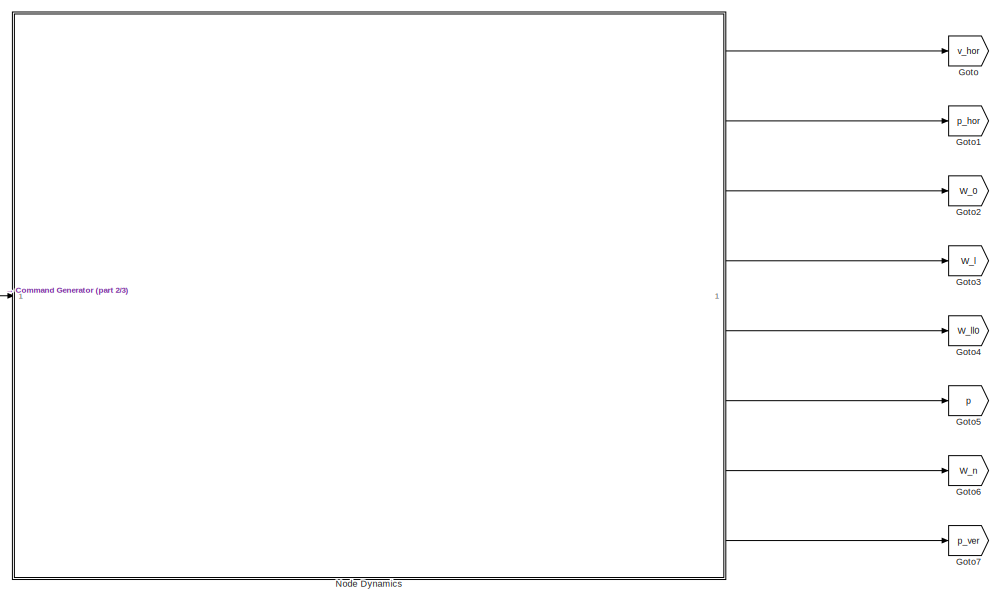
[diagram: root canvas - part 1/3, left side, full height]
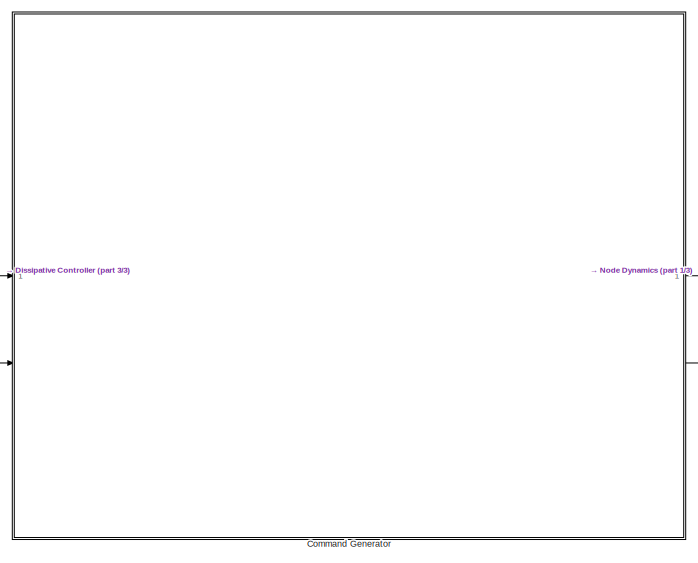
[diagram: root canvas - part 2/3, middle right region]
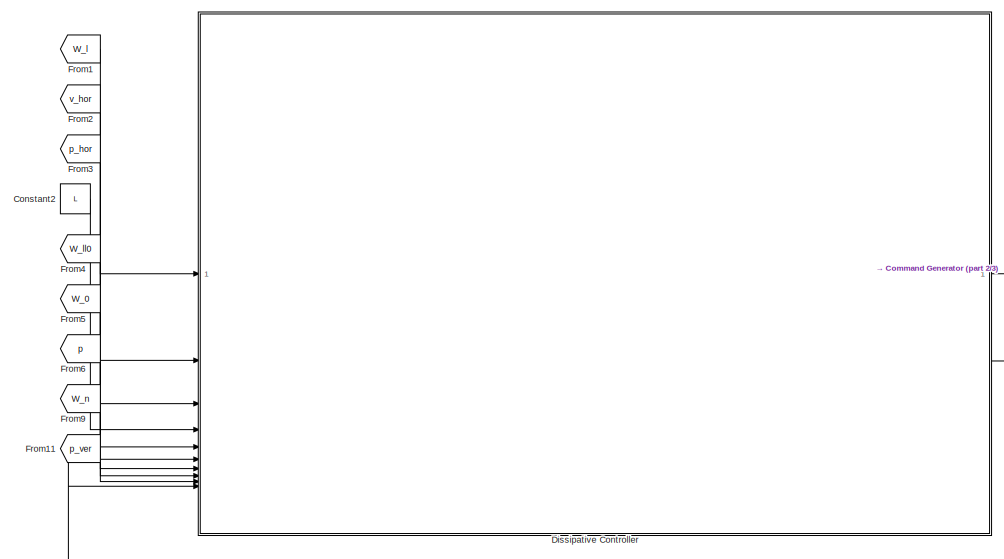
[diagram: root canvas - part 3/3, central region]
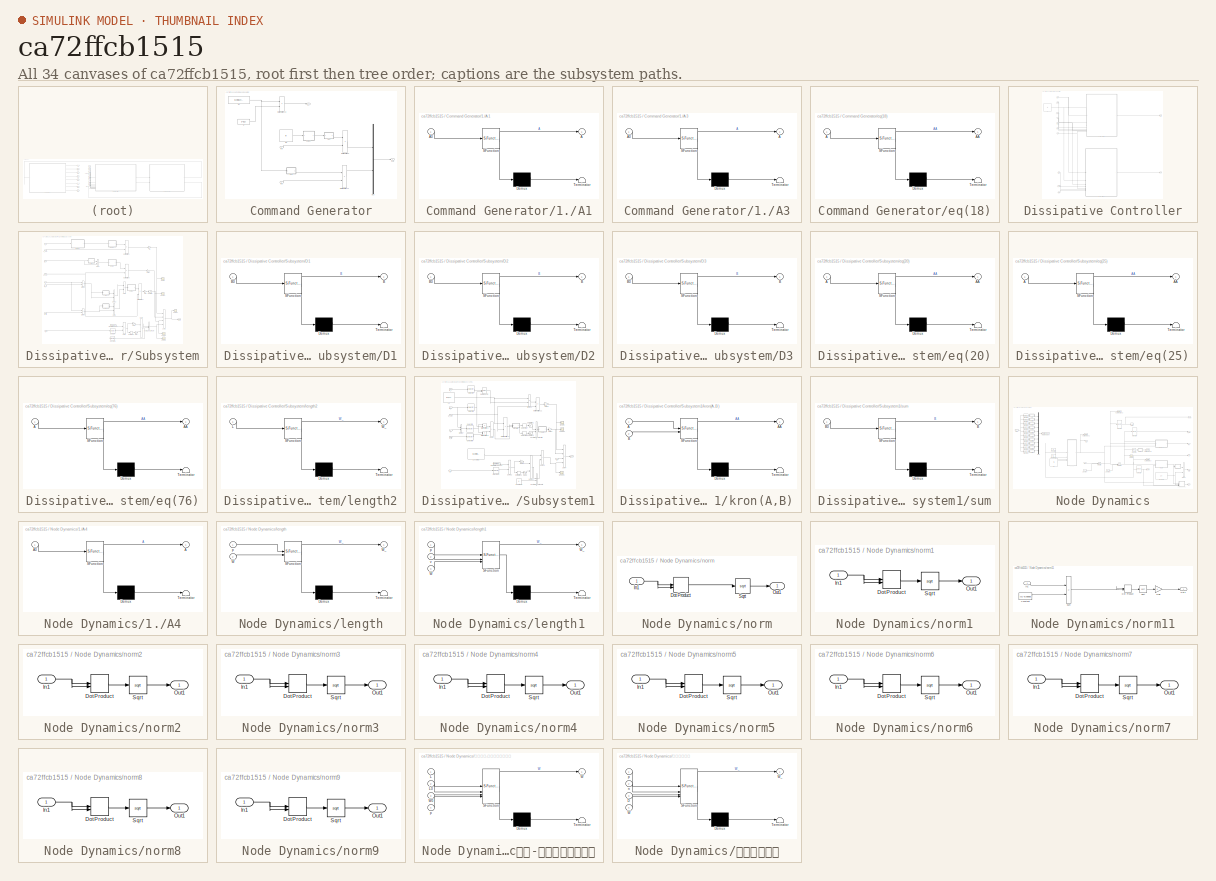
[diagram: thumbnail index - all 34 canvases of the model, root first then tree order]
MODEL slx_ca72ffcb1515
KIND model
CONFIG AbsTol = auto
CONFIG EnableMultiTasking = off
CONFIG FixedStep = 0.001
CONFIG MaxStep = auto
CONFIG MinStep = auto
CONFIG RelTol = 1e-3
CONFIG SampleTimeConstraint = Unconstrained
CONFIG SolverName = ode4
CONFIG StartTime = 0.0
CONFIG StopTime = 15
BLOCK [SubSystem] Command Generator
BLOCK [Outport] Command Generator/-重力
  Port = 2
BLOCK [SubSystem] Command Generator/1.//A1
  ErrorFcn = Stateflow.Translate.translate
  PermitHierarchicalResolution = ExplicitOnly
  SFBlockType = MATLAB Function
  TreatAsAtomicUnit = on
BLOCK [Demux] Command Generator/1.//A1/ Demux 
  Outputs = 1
BLOCK [S-Function] Command Generator/1.//A1/ SFunction 
  EnableBusSupport = on
  FunctionName = sf_sfun
  PortCounts = [1 2]
  SFcnIsStateOwnerBlock = off
  SFunctionDeploymentMode = off
  Tag = Stateflow S-Function 4
BLOCK [Terminator] Command Generator/1.//A1/ Terminator 
BLOCK [Outport] Command Generator/1.//A1/A
BLOCK [Inport] Command Generator/1.//A1/A0
BLOCK [SubSystem] Command Generator/1.//A3
  ErrorFcn = Stateflow.Translate.translate
  PermitHierarchicalResolution = ExplicitOnly
  SFBlockType = MATLAB Function
  TreatAsAtomicUnit = on
BLOCK [Demux] Command Generator/1.//A3/ Demux 
  Outputs = 1
BLOCK [S-Function] Command Generator/1.//A3/ SFunction 
  EnableBusSupport = on
  FunctionName = sf_sfun
  PortCounts = [1 2]
  SFcnIsStateOwnerBlock = off
  SFunctionDeploymentMode = off
  Tag = Stateflow S-Function 8
BLOCK [Terminator] Command Generator/1.//A3/ Terminator 
BLOCK [Outport] Command Generator/1.//A3/A
BLOCK [Inport] Command Generator/1.//A3/A0
BLOCK [Inport] Command Generator/In1
BLOCK [Inport] Command Generator/In2
  Port = 2
BLOCK [Constant] Command Generator/M3
  Value = M
BLOCK [Constant] Command Generator/M4
  Value = [sum(m(1:end-1)) 0;0 m(end)]
BLOCK [Product] Command Generator/Matrix Multiply13
  Multiplication = Matrix(*)
BLOCK [Product] Command Generator/Matrix Multiply14
  Multiplication = Matrix(*)
BLOCK [Product] Command Generator/Matrix Multiply6
  Multiplication = Matrix(*)
BLOCK [Mux] Command Generator/Mux
  DisplayOption = bar
  Inputs = 2
BLOCK [Outport] Command Generator/Out1
BLOCK [SubSystem] Command Generator/eq(18)
  ErrorFcn = Stateflow.Translate.translate
  PermitHierarchicalResolution = ExplicitOnly
  SFBlockType = MATLAB Function
  TreatAsAtomicUnit = on
BLOCK [Demux] Command Generator/eq(18)/ Demux 
  Outputs = 1
BLOCK [S-Function] Command Generator/eq(18)/ SFunction 
  EnableBusSupport = on
  FunctionName = sf_sfun
  PortCounts = [1 2]
  SFcnIsStateOwnerBlock = off
  SFunctionDeploymentMode = off
  Tag = Stateflow S-Function 7
BLOCK [Terminator] Command Generator/eq(18)/ Terminator 
BLOCK [Inport] Command Generator/eq(18)/A
BLOCK [Outport] Command Generator/eq(18)/AA
BLOCK [Constant] Command Generator/g
  Value = g*[-1;-1]
BLOCK [Constant] Constant2
  Value = L
BLOCK [SubSystem] Dissipative Controller
BLOCK [Inport] Dissipative Controller/-重力
  Port = 10
BLOCK [Outport] Dissipative Controller/F合力
  Port = 2
BLOCK [Constant] Dissipative Controller/K
  Value = K
BLOCK [Inport] Dissipative Controller/L
  Port = 4
BLOCK [Outport] Dissipative Controller/Out1
BLOCK [SubSystem] Dissipative Controller/Subsystem
BLOCK [Constant] Dissipative Controller/Subsystem/Constant4
  Value = zeros(2*n-2,1)
BLOCK [SubSystem] Dissipative Controller/Subsystem/D1
  ErrorFcn = Stateflow.Translate.translate
  PermitHierarchicalResolution = ExplicitOnly
  SFBlockType = MATLAB Function
  TreatAsAtomicUnit = on
BLOCK [Demux] Dissipative Controller/Subsystem/D1/ Demux 
  Outputs = 1
BLOCK [S-Function] Dissipative Controller/Subsystem/D1/ SFunction 
  EnableBusSupport = on
  FunctionName = sf_sfun
  PortCounts = [1 2]
  SFcnIsStateOwnerBlock = off
  SFunctionDeploymentMode = off
  Tag = Stateflow S-Function 11
BLOCK [Terminator] Dissipative Controller/Subsystem/D1/ Terminator 
BLOCK [Outport] Dissipative Controller/Subsystem/D1/B
BLOCK [Inport] Dissipative Controller/Subsystem/D1/B0
BLOCK [SubSystem] Dissipative Controller/Subsystem/D2
  ErrorFcn = Stateflow.Translate.translate
  PermitHierarchicalResolution = ExplicitOnly
  SFBlockType = MATLAB Function
  TreatAsAtomicUnit = on
BLOCK [Demux] Dissipative Controller/Subsystem/D2/ Demux 
  Outputs = 1
BLOCK [S-Function] Dissipative Controller/Subsystem/D2/ SFunction 
  EnableBusSupport = on
  FunctionName = sf_sfun
  PortCounts = [1 2]
  SFcnIsStateOwnerBlock = off
  SFunctionDeploymentMode = off
  Tag = Stateflow S-Function 6
BLOCK [Terminator] Dissipative Controller/Subsystem/D2/ Terminator 
BLOCK [Outport] Dissipative Controller/Subsystem/D2/B
BLOCK [Inport] Dissipative Controller/Subsystem/D2/B0
BLOCK [SubSystem] Dissipative Controller/Subsystem/D3
  ErrorFcn = Stateflow.Translate.translate
  PermitHierarchicalResolution = ExplicitOnly
  SFBlockType = MATLAB Function
  TreatAsAtomicUnit = on
BLOCK [Demux] Dissipative Controller/Subsystem/D3/ Demux 
  Outputs = 1
BLOCK [S-Function] Dissipative Controller/Subsystem/D3/ SFunction 
  EnableBusSupport = on
  FunctionName = sf_sfun
  PortCounts = [1 2]
  SFcnIsStateOwnerBlock = off
  SFunctionDeploymentMode = off
  Tag = Stateflow S-Function 15
BLOCK [Terminator] Dissipative Controller/Subsystem/D3/ Terminator 
BLOCK [Outport] Dissipative Controller/Subsystem/D3/B
BLOCK [Inport] Dissipative Controller/Subsystem/D3/B0
BLOCK [Derivative] Dissipative Controller/Subsystem/Derivative2
BLOCK [Product] Dissipative Controller/Subsystem/Divide5
  Inputs = **
BLOCK [Product] Dissipative Controller/Subsystem/Divide6
  Inputs = **
BLOCK [FromWorkspace] Dissipative Controller/Subsystem/From Workspace
  VariableName = pd_hor
BLOCK [Gain] Dissipative Controller/Subsystem/Gain
BLOCK [Gain] Dissipative Controller/Subsystem/Gain1
  Gain = 7
BLOCK [Gain] Dissipative Controller/Subsystem/Gain6
BLOCK [Gain] Dissipative Controller/Subsystem/Gain7
  Gain = 5
BLOCK [Inport] Dissipative Controller/Subsystem/K
  Port = 3
BLOCK [Inport] Dissipative Controller/Subsystem/L
  Port = 5
BLOCK [Product] Dissipative Controller/Subsystem/Matrix Multiply1
  Multiplication = Matrix(*)
BLOCK [Product] Dissipative Controller/Subsystem/Matrix Multiply4
  Multiplication = Matrix(*)
BLOCK [Product] Dissipative Controller/Subsystem/Matrix Multiply5
  Multiplication = Matrix(*)
BLOCK [Outport] Dissipative Controller/Subsystem/Out1
BLOCK [Saturate] Dissipative Controller/Subsystem/Saturation
  LowerLimit = -100
  UpperLimit = 100
BLOCK [Scope] Dissipative Controller/Subsystem/Scope
  Floating = off
  NumInputPorts = 1
  ScopeSpecificationString = Simulink.scopes.TimeScopeBlockCfg('CurrentConfiguration', extmgr.ConfigurationSet(extmgr.Configuration('Core','General UI',true),extmgr.Configuration('Core','Source UI',true),extmgr.Configuration('Sources','WiredSimulink',true,'DataLoggingVariableName','ScopeData3'),extmgr.Configuration('Visuals','Time Domain',true,'SerializedDisplays',{struct('MinYLimReal','-2.19461','MaxYLimReal','8.08379','YLab...<+1540ch>
BLOCK [Scope] Dissipative Controller/Subsystem/Scope1
  Floating = off
  NumInputPorts = 1
  ScopeSpecificationString = Simulink.scopes.TimeScopeBlockCfg('CurrentConfiguration', extmgr.ConfigurationSet(extmgr.Configuration('Core','General UI',true),extmgr.Configuration('Core','Source UI',true),extmgr.Configuration('Sources','WiredSimulink',true,'DataLoggingVariableName','ScopeData4'),extmgr.Configuration('Visuals','Time Domain',true,'SerializedDisplays',{struct('MinYLimReal','-13.56448','MaxYLimReal','14.24267','YL...<+1602ch>
BLOCK [Scope] Dissipative Controller/Subsystem/Scope2
  Floating = off
  NumInputPorts = 1
  ScopeSpecificationString = Simulink.scopes.TimeScopeBlockCfg('CurrentConfiguration', extmgr.ConfigurationSet(extmgr.Configuration('Core','General UI',true),extmgr.Configuration('Core','Source UI',true),extmgr.Configuration('Sources','WiredSimulink',true,'DataLoggingVariableName','ScopeData5'),extmgr.Configuration('Visuals','Time Domain',true,'SerializedDisplays',{struct('MinYLimReal','-118.39545','MaxYLimReal','65.55905','Y...<+1769ch>
BLOCK [Scope] Dissipative Controller/Subsystem/Scope3
  Floating = off
  NumInputPorts = 1
  ScopeSpecificationString = Simulink.scopes.TimeScopeBlockCfg('CurrentConfiguration', extmgr.ConfigurationSet(extmgr.Configuration('Core','General UI',true),extmgr.Configuration('Core','Source UI',true),extmgr.Configuration('Sources','WiredSimulink',true,'DataLoggingVariableName','ScopeData6'),extmgr.Configuration('Visuals','Time Domain',true,'SerializedDisplays',{struct('MinYLimReal','-3.95838','MaxYLimReal','11.55093','YLa...<+1700ch>
BLOCK [Scope] Dissipative Controller/Subsystem/Scope4
  Floating = off
  NumInputPorts = 1
  ScopeSpecificationString = Simulink.scopes.TimeScopeBlockCfg('CurrentConfiguration', extmgr.ConfigurationSet(extmgr.Configuration('Core','General UI',true),extmgr.Configuration('Core','Source UI',true),extmgr.Configuration('Sources','WiredSimulink',true,'DataLoggingVariableName','ScopeData7'),extmgr.Configuration('Visuals','Time Domain',true,'SerializedDisplays',{struct('MinYLimReal','-65.55905','MaxYLimReal','118.39545','Y...<+1623ch>
BLOCK [Selector] Dissipative Controller/Subsystem/Selector4
  IndexOptions = Index vector (dialog)
  Indices = [1 2]
  InputPortWidth = 2*n+2
  OutputSizes = 1
BLOCK [Sum] Dissipative Controller/Subsystem/Sum10
  IconShape = rectangular
  Inputs = +-
BLOCK [Sum] Dissipative Controller/Subsystem/Sum2
  IconShape = rectangular
  Inputs = +-
BLOCK [Sum] Dissipative Controller/Subsystem/Sum3
  IconShape = rectangular
  Inputs = ---+
BLOCK [Sum] Dissipative Controller/Subsystem/Sum4
  IconShape = rectangular
  Inputs = +-
BLOCK [Sum] Dissipative Controller/Subsystem/Sum6
  IconShape = rectangular
BLOCK [Sum] Dissipative Controller/Subsystem/Sum8
  IconShape = rectangular
  Inputs = +-
BLOCK [Sum] Dissipative Controller/Subsystem/Sum9
  IconShape = rectangular
  Inputs = +-
BLOCK [Concatenate] Dissipative Controller/Subsystem/Vector Concatenate
BLOCK [Inport] Dissipative Controller/Subsystem/W_0
  Port = 7
BLOCK [Inport] Dissipative Controller/Subsystem/W_l
BLOCK [Inport] Dissipative Controller/Subsystem/W_l//l0
  Port = 6
BLOCK [SubSystem] Dissipative Controller/Subsystem/eq(20)
  ErrorFcn = Stateflow.Translate.translate
  PermitHierarchicalResolution = ExplicitOnly
  SFBlockType = MATLAB Function
  TreatAsAtomicUnit = on
BLOCK [Demux] Dissipative Controller/Subsystem/eq(20)/ Demux 
  Outputs = 1
BLOCK [S-Function] Dissipative Controller/Subsystem/eq(20)/ SFunction 
  EnableBusSupport = on
  FunctionName = sf_sfun
  PortCounts = [1 2]
  SFcnIsStateOwnerBlock = off
  SFunctionDeploymentMode = off
  Tag = Stateflow S-Function 9
BLOCK [Terminator] Dissipative Controller/Subsystem/eq(20)/ Terminator 
BLOCK [Inport] Dissipative Controller/Subsystem/eq(20)/A
BLOCK [Outport] Dissipative Controller/Subsystem/eq(20)/AA
BLOCK [SubSystem] Dissipative Controller/Subsystem/eq(25)
  ErrorFcn = Stateflow.Translate.translate
  PermitHierarchicalResolution = ExplicitOnly
  SFBlockType = MATLAB Function
  TreatAsAtomicUnit = on
BLOCK [Demux] Dissipative Controller/Subsystem/eq(25)/ Demux 
  Outputs = 1
BLOCK [S-Function] Dissipative Controller/Subsystem/eq(25)/ SFunction 
  EnableBusSupport = on
  FunctionName = sf_sfun
  PortCounts = [1 2]
  SFcnIsStateOwnerBlock = off
  SFunctionDeploymentMode = off
  Tag = Stateflow S-Function 10
BLOCK [Terminator] Dissipative Controller/Subsystem/eq(25)/ Terminator 
BLOCK [Inport] Dissipative Controller/Subsystem/eq(25)/A
BLOCK [Outport] Dissipative Controller/Subsystem/eq(25)/AA
BLOCK [SubSystem] Dissipative Controller/Subsystem/eq(76)
  ErrorFcn = Stateflow.Translate.translate
  PermitHierarchicalResolution = ExplicitOnly
  SFBlockType = MATLAB Function
  TreatAsAtomicUnit = on
BLOCK [Demux] Dissipative Controller/Subsystem/eq(76)/ Demux 
  Outputs = 1
BLOCK [S-Function] Dissipative Controller/Subsystem/eq(76)/ SFunction 
  EnableBusSupport = on
  FunctionName = sf_sfun
  PortCounts = [1 2]
  SFcnIsStateOwnerBlock = off
  SFunctionDeploymentMode = off
  Tag = Stateflow S-Function 12
BLOCK [Terminator] Dissipative Controller/Subsystem/eq(76)/ Terminator 
BLOCK [Inport] Dissipative Controller/Subsystem/eq(76)/A
BLOCK [Outport] Dissipative Controller/Subsystem/eq(76)/AA
BLOCK [SubSystem] Dissipative Controller/Subsystem/length2
  ErrorFcn = Stateflow.Translate.translate
  PermitHierarchicalResolution = ExplicitOnly
  SFBlockType = MATLAB Function
  TreatAsAtomicUnit = on
BLOCK [Demux] Dissipative Controller/Subsystem/length2/ Demux 
  Outputs = 1
BLOCK [S-Function] Dissipative Controller/Subsystem/length2/ SFunction 
  EnableBusSupport = on
  FunctionName = sf_sfun
  PortCounts = [1 2]
  SFcnIsStateOwnerBlock = off
  SFunctionDeploymentMode = off
  Tag = Stateflow S-Function 2
BLOCK [Terminator] Dissipative Controller/Subsystem/length2/ Terminator 
BLOCK [Inport] Dissipative Controller/Subsystem/length2/L
BLOCK [Outport] Dissipative Controller/Subsystem/length2/W_
BLOCK [Gain] Dissipative Controller/Subsystem/mu
  Gain = 5
BLOCK [Inport] Dissipative Controller/Subsystem/p
  Port = 8
BLOCK [Inport] Dissipative Controller/Subsystem/p_hor
  Port = 4
BLOCK [Inport] Dissipative Controller/Subsystem/v_hor
  Port = 2
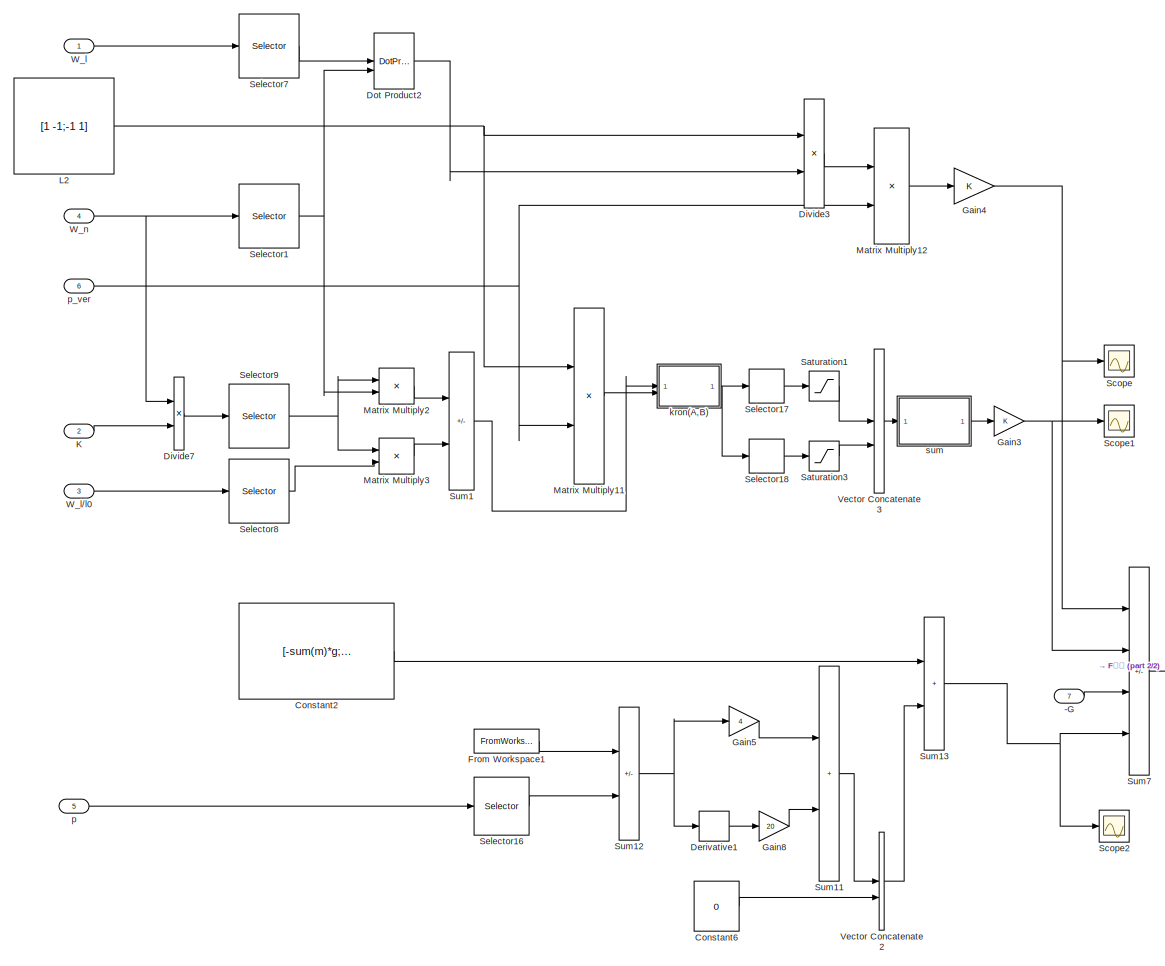
[diagram: Dissipative Controller/Subsystem1 - part 1/2, most of the canvas]
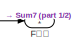
[diagram: Dissipative Controller/Subsystem1 - part 2/2, bottom right region]
BLOCK [SubSystem] Dissipative Controller/Subsystem1
BLOCK [Inport] Dissipative Controller/Subsystem1/-G
  Port = 7
BLOCK [Constant] Dissipative Controller/Subsystem1/Constant2
  Value = [-sum(m)*g;0]
BLOCK [Constant] Dissipative Controller/Subsystem1/Constant6
  Value = 0
BLOCK [Derivative] Dissipative Controller/Subsystem1/Derivative1
BLOCK [Product] Dissipative Controller/Subsystem1/Divide3
  Inputs = **
BLOCK [Product] Dissipative Controller/Subsystem1/Divide7
  Inputs = **
BLOCK [DotProduct] Dissipative Controller/Subsystem1/Dot Product2
  OutDataTypeStr = Inherit: Inherit via internal rule
BLOCK [FromWorkspace] Dissipative Controller/Subsystem1/From Workspace1
  VariableName = pd_ver
BLOCK [Outport] Dissipative Controller/Subsystem1/F合力
BLOCK [Gain] Dissipative Controller/Subsystem1/Gain3
BLOCK [Gain] Dissipative Controller/Subsystem1/Gain4
BLOCK [Gain] Dissipative Controller/Subsystem1/Gain5
  Gain = 4
BLOCK [Gain] Dissipative Controller/Subsystem1/Gain8
  Gain = 20
BLOCK [Inport] Dissipative Controller/Subsystem1/K
  Port = 2
BLOCK [Constant] Dissipative Controller/Subsystem1/L2
  Value = [1 -1;-1 1]
BLOCK [Product] Dissipative Controller/Subsystem1/Matrix Multiply11
  Multiplication = Matrix(*)
BLOCK [Product] Dissipative Controller/Subsystem1/Matrix Multiply12
  Multiplication = Matrix(*)
BLOCK [Product] Dissipative Controller/Subsystem1/Matrix Multiply2
BLOCK [Product] Dissipative Controller/Subsystem1/Matrix Multiply3
BLOCK [Saturate] Dissipative Controller/Subsystem1/Saturation1
  LowerLimit = -am
  UpperLimit = am
BLOCK [Saturate] Dissipative Controller/Subsystem1/Saturation3
  LowerLimit = -am
  UpperLimit = am
BLOCK [Scope] Dissipative Controller/Subsystem1/Scope
  Floating = off
  NumInputPorts = 1
  ScopeSpecificationString = Simulink.scopes.TimeScopeBlockCfg('CurrentConfiguration', extmgr.ConfigurationSet(extmgr.Configuration('Core','General UI',true),extmgr.Configuration('Core','Source UI',true),extmgr.Configuration('Sources','WiredSimulink',true,'DataLoggingVariableName','ScopeData1'),extmgr.Configuration('Visuals','Time Domain',true,'SerializedDisplays',{struct('MinYLimReal','-2.19461','MaxYLimReal','8.08379','YLab...<+1540ch>
BLOCK [Scope] Dissipative Controller/Subsystem1/Scope1
  Floating = off
  NumInputPorts = 1
  ScopeSpecificationString = Simulink.scopes.TimeScopeBlockCfg('CurrentConfiguration', extmgr.ConfigurationSet(extmgr.Configuration('Core','General UI',true),extmgr.Configuration('Core','Source UI',true),extmgr.Configuration('Sources','WiredSimulink',true,'DataLoggingVariableName','ScopeData2'),extmgr.Configuration('Visuals','Time Domain',true,'SerializedDisplays',{struct('MinYLimReal','-2.19461','MaxYLimReal','8.08379','YLab...<+1540ch>
BLOCK [Scope] Dissipative Controller/Subsystem1/Scope2
  Floating = off
  NumInputPorts = 1
  ScopeSpecificationString = Simulink.scopes.TimeScopeBlockCfg('CurrentConfiguration', extmgr.ConfigurationSet(extmgr.Configuration('Core','General UI',true),extmgr.Configuration('Core','Source UI',true),extmgr.Configuration('Sources','WiredSimulink',true,'DataLoggingVariableName','ScopeData3'),extmgr.Configuration('Visuals','Time Domain',true,'SerializedDisplays',{struct('MinYLimReal','-2.19461','MaxYLimReal','8.08379','YLab...<+1540ch>
BLOCK [Selector] Dissipative Controller/Subsystem1/Selector1
  IndexOptions = Index vector (dialog),Index vector (dialog)
  Indices = n,[1:n]
  InputPortWidth = 6
  NumberOfDimensions = 2
  OutputSizes = 1,1
BLOCK [Selector] Dissipative Controller/Subsystem1/Selector16
  IndexOptions = Index vector (dialog)
  Indices = 2*n+1
  InputPortWidth = 2*n+2
  OutputSizes = 1
BLOCK [Selector] Dissipative Controller/Subsystem1/Selector17
  IndexOptions = Index vector (dialog),Index vector (dialog)
  Indices = 1,[1:n]
  InputPortWidth = 6
  NumberOfDimensions = 2
  OutputSizes = 1,1
BLOCK [Selector] Dissipative Controller/Subsystem1/Selector18
  IndexOptions = Index vector (dialog),Index vector (dialog)
  Indices = 2,[1:n]
  InputPortWidth = 6
  NumberOfDimensions = 2
  OutputSizes = 1,1
BLOCK [Selector] Dissipative Controller/Subsystem1/Selector7
  IndexOptions = Index vector (dialog),Index vector (dialog)
  Indices = n,[1:n]
  InputPortWidth = 6
  NumberOfDimensions = 2
  OutputSizes = 1,1
BLOCK [Selector] Dissipative Controller/Subsystem1/Selector8
  IndexOptions = Index vector (dialog),Index vector (dialog)
  Indices = n,[1:n]
  InputPortWidth = 6
  NumberOfDimensions = 2
  OutputSizes = 1,1
BLOCK [Selector] Dissipative Controller/Subsystem1/Selector9
  IndexOptions = Index vector (dialog),Index vector (dialog)
  Indices = n,[1:n]
  InputPortWidth = 6
  NumberOfDimensions = 2
  OutputSizes = 1,1
BLOCK [Sum] Dissipative Controller/Subsystem1/Sum1
  IconShape = rectangular
  Inputs = +-
BLOCK [Sum] Dissipative Controller/Subsystem1/Sum11
  IconShape = rectangular
BLOCK [Sum] Dissipative Controller/Subsystem1/Sum12
  IconShape = rectangular
  Inputs = +-
BLOCK [Sum] Dissipative Controller/Subsystem1/Sum13
  IconShape = rectangular
BLOCK [Sum] Dissipative Controller/Subsystem1/Sum7
  IconShape = rectangular
  Inputs = ---+
BLOCK [Concatenate] Dissipative Controller/Subsystem1/Vector Concatenate2
BLOCK [Concatenate] Dissipative Controller/Subsystem1/Vector Concatenate3
  Mode = Multidimensional array
BLOCK [Inport] Dissipative Controller/Subsystem1/W_l
BLOCK [Inport] Dissipative Controller/Subsystem1/W_l//l0
  Port = 3
BLOCK [Inport] Dissipative Controller/Subsystem1/W_n
  Port = 4
BLOCK [SubSystem] Dissipative Controller/Subsystem1/kron(A,B)
  ErrorFcn = Stateflow.Translate.translate
  PermitHierarchicalResolution = ExplicitOnly
  SFBlockType = MATLAB Function
  TreatAsAtomicUnit = on
BLOCK [Demux] Dissipative Controller/Subsystem1/kron(A,B)/ Demux 
  Outputs = 1
BLOCK [S-Function] Dissipative Controller/Subsystem1/kron(A,B)/ SFunction 
  EnableBusSupport = on
  FunctionName = sf_sfun
  PortCounts = [2 2]
  SFcnIsStateOwnerBlock = off
  SFunctionDeploymentMode = off
  Tag = Stateflow S-Function 19
BLOCK [Terminator] Dissipative Controller/Subsystem1/kron(A,B)/ Terminator 
BLOCK [Inport] Dissipative Controller/Subsystem1/kron(A,B)/A
BLOCK [Outport] Dissipative Controller/Subsystem1/kron(A,B)/AA
BLOCK [Inport] Dissipative Controller/Subsystem1/kron(A,B)/B
  Port = 2
BLOCK [Inport] Dissipative Controller/Subsystem1/p
  Port = 5
BLOCK [Inport] Dissipative Controller/Subsystem1/p_ver
  Port = 6
BLOCK [SubSystem] Dissipative Controller/Subsystem1/sum
  ErrorFcn = Stateflow.Translate.translate
  PermitHierarchicalResolution = ExplicitOnly
  SFBlockType = MATLAB Function
  TreatAsAtomicUnit = on
BLOCK [Demux] Dissipative Controller/Subsystem1/sum/ Demux 
  Outputs = 1
BLOCK [S-Function] Dissipative Controller/Subsystem1/sum/ SFunction 
  EnableBusSupport = on
  FunctionName = sf_sfun
  PortCounts = [1 2]
  SFcnIsStateOwnerBlock = off
  SFunctionDeploymentMode = off
  Tag = Stateflow S-Function 20
BLOCK [Terminator] Dissipative Controller/Subsystem1/sum/ Terminator 
BLOCK [Outport] Dissipative Controller/Subsystem1/sum/B
BLOCK [Inport] Dissipative Controller/Subsystem1/sum/B0
BLOCK [Inport] Dissipative Controller/W_0
  Port = 6
BLOCK [Inport] Dissipative Controller/W_l
BLOCK [Inport] Dissipative Controller/W_l//l0
  Port = 5
BLOCK [Inport] Dissipative Controller/W_n
  Port = 8
BLOCK [Inport] Dissipative Controller/p
  Port = 7
BLOCK [Inport] Dissipative Controller/p_hor
  Port = 3
BLOCK [Inport] Dissipative Controller/p_ver
  Port = 9
BLOCK [Inport] Dissipative Controller/v_hor
  Port = 2
BLOCK [From] From1
  GotoTag = W_l
BLOCK [From] From11
  GotoTag = p_ver
BLOCK [From] From2
  GotoTag = v_hor
BLOCK [From] From3
  GotoTag = p_hor
BLOCK [From] From4
  GotoTag = W_ll0
BLOCK [From] From5
  GotoTag = W_0
BLOCK [From] From6
  GotoTag = p
BLOCK [From] From9
  GotoTag = W_n
BLOCK [Goto] Goto
  GotoTag = v_hor
BLOCK [Goto] Goto1
  GotoTag = p_hor
BLOCK [Goto] Goto2
  GotoTag = W_0
BLOCK [Goto] Goto3
  GotoTag = W_l
BLOCK [Goto] Goto4
  GotoTag = W_ll0
BLOCK [Goto] Goto5
  GotoTag = p
BLOCK [Goto] Goto6
  GotoTag = W_n
BLOCK [Goto] Goto7
  GotoTag = p_ver
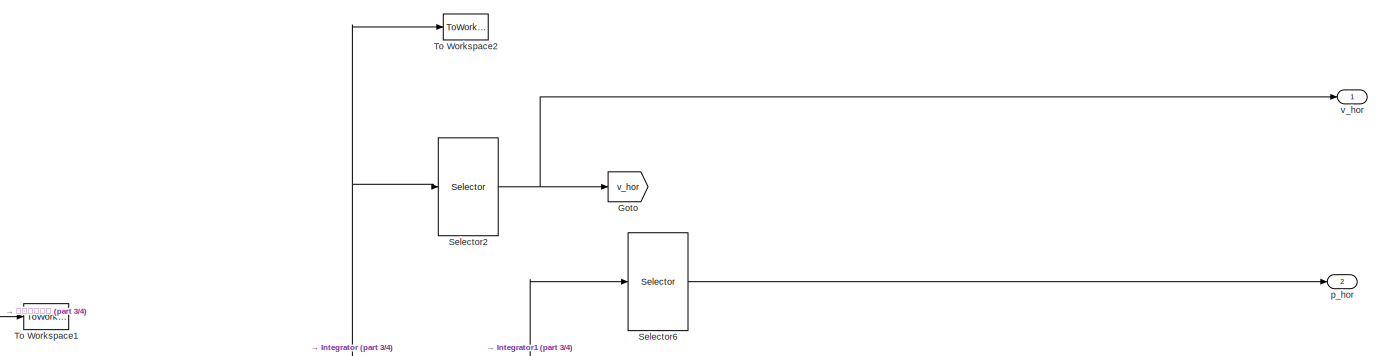
[diagram: Node Dynamics - part 1/4, top right region]
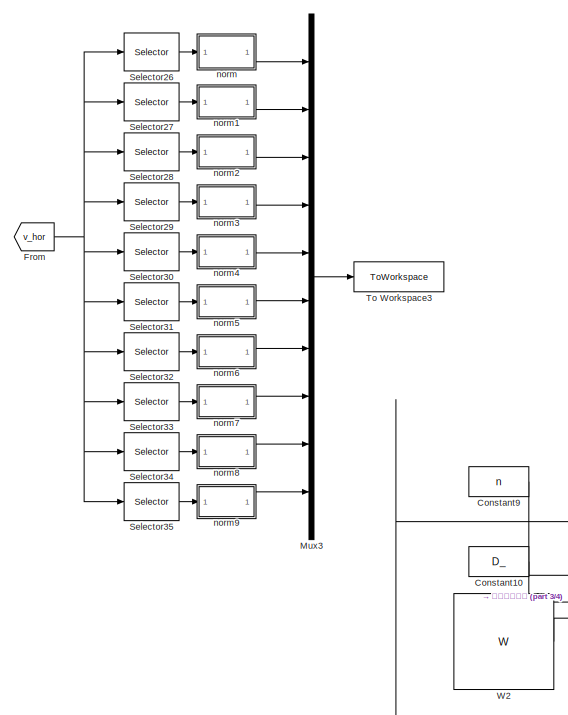
[diagram: Node Dynamics - part 2/4, middle left region]
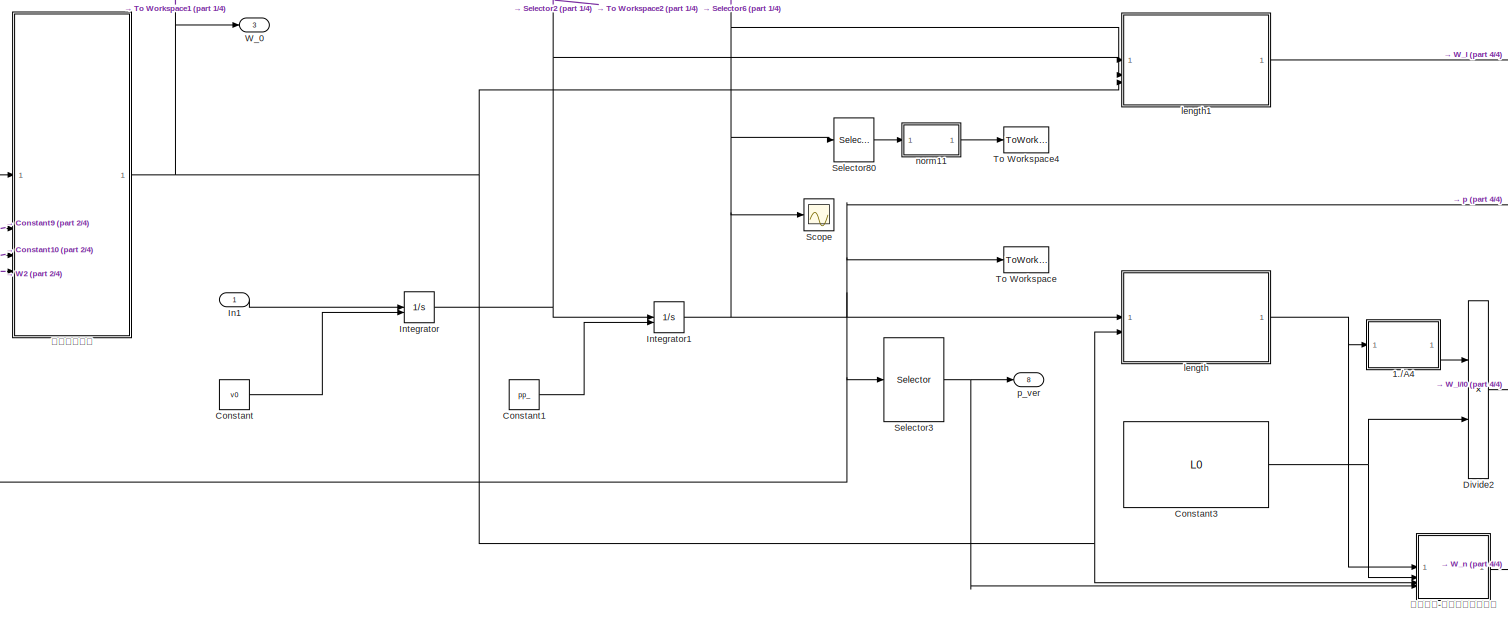
[diagram: Node Dynamics - part 3/4, bottom center region]
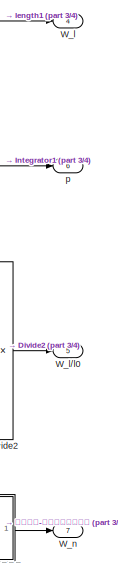
[diagram: Node Dynamics - part 4/4, bottom right region]
BLOCK [SubSystem] Node Dynamics
BLOCK [SubSystem] Node Dynamics/1.//A4
  ErrorFcn = Stateflow.Translate.translate
  PermitHierarchicalResolution = ExplicitOnly
  SFBlockType = MATLAB Function
  TreatAsAtomicUnit = on
BLOCK [Demux] Node Dynamics/1.//A4/ Demux 
  Outputs = 1
BLOCK [S-Function] Node Dynamics/1.//A4/ SFunction 
  EnableBusSupport = on
  FunctionName = sf_sfun
  PortCounts = [1 2]
  SFcnIsStateOwnerBlock = off
  SFunctionDeploymentMode = off
  Tag = Stateflow S-Function 3
BLOCK [Terminator] Node Dynamics/1.//A4/ Terminator 
BLOCK [Outport] Node Dynamics/1.//A4/A
BLOCK [Inport] Node Dynamics/1.//A4/A0
BLOCK [Constant] Node Dynamics/Constant
  Value = v0
BLOCK [Constant] Node Dynamics/Constant1
  Value = pp_
BLOCK [Constant] Node Dynamics/Constant10
  Value = D_
BLOCK [Constant] Node Dynamics/Constant3
  Value = L0
BLOCK [Constant] Node Dynamics/Constant9
  Value = n
BLOCK [Product] Node Dynamics/Divide2
  Inputs = **
BLOCK [From] Node Dynamics/From
  GotoTag = v_hor
BLOCK [Goto] Node Dynamics/Goto
  GotoTag = v_hor
BLOCK [Inport] Node Dynamics/In1
BLOCK [Integrator] Node Dynamics/Integrator
  InitialConditionSource = external
BLOCK [Integrator] Node Dynamics/Integrator1
  InitialConditionSource = external
BLOCK [Mux] Node Dynamics/Mux3
  DisplayOption = bar
  Inputs = 10
BLOCK [Scope] Node Dynamics/Scope
  Floating = off
  NumInputPorts = 1
  ScopeSpecificationString = Simulink.scopes.TimeScopeBlockCfg('CurrentConfiguration', extmgr.ConfigurationSet(extmgr.Configuration('Core','General UI',true),extmgr.Configuration('Core','Source UI',true),extmgr.Configuration('Sources','WiredSimulink',true,'DataLoggingVariableName','ScopeData1'),extmgr.Configuration('Visuals','Time Domain',true,'SerializedDisplays',{struct('MinYLimReal','-6.49442','MaxYLimReal','3.45193','YLab...<+1711ch>
BLOCK [Selector] Node Dynamics/Selector2
  IndexOptions = Index vector (dialog)
  Indices = [1:2*n]
  InputPortWidth = 2*n+2
  OutputSizes = 1
BLOCK [Selector] Node Dynamics/Selector26
  IndexOptions = Index vector (dialog)
  Indices = [3,4]
  InputPortWidth = 2*n
  OutputSizes = 1
BLOCK [Selector] Node Dynamics/Selector27
  IndexOptions = Index vector (dialog)
  Indices = [5,6]
  InputPortWidth = 2*n
  OutputSizes = 1
BLOCK [Selector] Node Dynamics/Selector28
  IndexOptions = Index vector (dialog)
  Indices = [7,8]
  InputPortWidth = 2*n
  OutputSizes = 1
BLOCK [Selector] Node Dynamics/Selector29
  IndexOptions = Index vector (dialog)
  Indices = [9,10]
  InputPortWidth = 2*n
  OutputSizes = 1
BLOCK [Selector] Node Dynamics/Selector3
  IndexOptions = Index vector (dialog)
  Indices = [2*n+1 2*n+2]
  InputPortWidth = 2*n+2
  OutputSizes = 1
BLOCK [Selector] Node Dynamics/Selector30
  IndexOptions = Index vector (dialog)
  Indices = [11,12]
  InputPortWidth = 2*n
  OutputSizes = 1
BLOCK [Selector] Node Dynamics/Selector31
  IndexOptions = Index vector (dialog)
  Indices = [13,14]
  InputPortWidth = 2*n
  OutputSizes = 1
BLOCK [Selector] Node Dynamics/Selector32
  IndexOptions = Index vector (dialog)
  Indices = [15,16]
  InputPortWidth = 2*n
  OutputSizes = 1
BLOCK [Selector] Node Dynamics/Selector33
  IndexOptions = Index vector (dialog)
  Indices = [17,18]
  InputPortWidth = 2*n
  OutputSizes = 1
BLOCK [Selector] Node Dynamics/Selector34
  IndexOptions = Index vector (dialog)
  Indices = [19,20]
  InputPortWidth = 2*n
  OutputSizes = 1
BLOCK [Selector] Node Dynamics/Selector35
  IndexOptions = Index vector (dialog)
  Indices = [21,22]
  InputPortWidth = 2*n
  OutputSizes = 1
BLOCK [Selector] Node Dynamics/Selector6
  IndexOptions = Index vector (dialog)
  Indices = [1:2*n]
  InputPortWidth = 2*n+2
  OutputSizes = 1
BLOCK [Selector] Node Dynamics/Selector80
  IndexOptions = Index vector (dialog)
  Indices = [2*n,2*n+2]
  InputPortWidth = 2*n+2
  OutputSizes = 1
BLOCK [ToWorkspace] Node Dynamics/To Workspace
  FixptAsFi = on
  MaxDataPoints = inf
  SampleTime = -1
  SaveFormat = Timeseries
  VariableName = p
BLOCK [ToWorkspace] Node Dynamics/To Workspace1
  FixptAsFi = on
  MaxDataPoints = inf
  SampleTime = -1
  SaveFormat = Timeseries
  VariableName = W
BLOCK [ToWorkspace] Node Dynamics/To Workspace2
  FixptAsFi = on
  MaxDataPoints = inf
  SampleTime = -1
  SaveFormat = Timeseries
  VariableName = v
BLOCK [ToWorkspace] Node Dynamics/To Workspace3
  FixptAsFi = on
  MaxDataPoints = inf
  SampleTime = -1
  SaveFormat = Timeseries
  VariableName = v_norm
BLOCK [ToWorkspace] Node Dynamics/To Workspace4
  FixptAsFi = on
  MaxDataPoints = inf
  SampleTime = -1
  SaveFormat = Timeseries
  VariableName = e
BLOCK [Constant] Node Dynamics/W2
  Value = W
BLOCK [Outport] Node Dynamics/W_0
  Port = 3
BLOCK [Outport] Node Dynamics/W_l
  Port = 4
BLOCK [Outport] Node Dynamics/W_l//l0
  Port = 5
BLOCK [Outport] Node Dynamics/W_n
  Port = 7
BLOCK [SubSystem] Node Dynamics/length
  ErrorFcn = Stateflow.Translate.translate
  PermitHierarchicalResolution = ExplicitOnly
  SFBlockType = MATLAB Function
  TreatAsAtomicUnit = on
BLOCK [Demux] Node Dynamics/length/ Demux 
  Outputs = 1
BLOCK [S-Function] Node Dynamics/length/ SFunction 
  EnableBusSupport = on
  FunctionName = sf_sfun
  PortCounts = [2 2]
  SFcnIsStateOwnerBlock = off
  SFunctionDeploymentMode = off
  Tag = Stateflow S-Function 1
BLOCK [Terminator] Node Dynamics/length/ Terminator 
BLOCK [Inport] Node Dynamics/length/W
  Port = 2
BLOCK [Outport] Node Dynamics/length/W_
BLOCK [Inport] Node Dynamics/length/p
BLOCK [SubSystem] Node Dynamics/length1
  ErrorFcn = Stateflow.Translate.translate
  PermitHierarchicalResolution = ExplicitOnly
  SFBlockType = MATLAB Function
  TreatAsAtomicUnit = on
BLOCK [Demux] Node Dynamics/length1/ Demux 
  Outputs = 1
BLOCK [S-Function] Node Dynamics/length1/ SFunction 
  EnableBusSupport = on
  FunctionName = sf_sfun
  PortCounts = [3 2]
  SFcnIsStateOwnerBlock = off
  SFunctionDeploymentMode = off
  Tag = Stateflow S-Function 5
BLOCK [Terminator] Node Dynamics/length1/ Terminator 
BLOCK [Inport] Node Dynamics/length1/W
  Port = 3
BLOCK [Outport] Node Dynamics/length1/W_
BLOCK [Inport] Node Dynamics/length1/p
BLOCK [Inport] Node Dynamics/length1/v
  Port = 2
BLOCK [SubSystem] Node Dynamics/norm
BLOCK [DotProduct] Node Dynamics/norm/Dot Product
  OutDataTypeStr = Inherit: Inherit via internal rule
BLOCK [Inport] Node Dynamics/norm/In1
BLOCK [Outport] Node Dynamics/norm/Out1
BLOCK [Sqrt] Node Dynamics/norm/Sqrt
BLOCK [SubSystem] Node Dynamics/norm1
BLOCK [DotProduct] Node Dynamics/norm1/Dot Product
  OutDataTypeStr = Inherit: Inherit via internal rule
BLOCK [Inport] Node Dynamics/norm1/In1
BLOCK [Outport] Node Dynamics/norm1/Out1
BLOCK [Sqrt] Node Dynamics/norm1/Sqrt
BLOCK [SubSystem] Node Dynamics/norm11
BLOCK [Constant] Node Dynamics/norm11/Constant
  Value = [0;-8.5858]
BLOCK [DotProduct] Node Dynamics/norm11/Dot Product
  OutDataTypeStr = Inherit: Inherit via internal rule
BLOCK [Gain] Node Dynamics/norm11/Gain
BLOCK [Inport] Node Dynamics/norm11/In1
BLOCK [Outport] Node Dynamics/norm11/Out1
BLOCK [Sqrt] Node Dynamics/norm11/Sqrt
BLOCK [Sum] Node Dynamics/norm11/Sum
  IconShape = rectangular
  Inputs = +-
BLOCK [SubSystem] Node Dynamics/norm2
BLOCK [DotProduct] Node Dynamics/norm2/Dot Product
  OutDataTypeStr = Inherit: Inherit via internal rule
BLOCK [Inport] Node Dynamics/norm2/In1
BLOCK [Outport] Node Dynamics/norm2/Out1
BLOCK [Sqrt] Node Dynamics/norm2/Sqrt
BLOCK [SubSystem] Node Dynamics/norm3
BLOCK [DotProduct] Node Dynamics/norm3/Dot Product
  OutDataTypeStr = Inherit: Inherit via internal rule
BLOCK [Inport] Node Dynamics/norm3/In1
BLOCK [Outport] Node Dynamics/norm3/Out1
BLOCK [Sqrt] Node Dynamics/norm3/Sqrt
BLOCK [SubSystem] Node Dynamics/norm4
BLOCK [DotProduct] Node Dynamics/norm4/Dot Product
  OutDataTypeStr = Inherit: Inherit via internal rule
BLOCK [Inport] Node Dynamics/norm4/In1
BLOCK [Outport] Node Dynamics/norm4/Out1
BLOCK [Sqrt] Node Dynamics/norm4/Sqrt
BLOCK [SubSystem] Node Dynamics/norm5
BLOCK [DotProduct] Node Dynamics/norm5/Dot Product
  OutDataTypeStr = Inherit: Inherit via internal rule
BLOCK [Inport] Node Dynamics/norm5/In1
BLOCK [Outport] Node Dynamics/norm5/Out1
BLOCK [Sqrt] Node Dynamics/norm5/Sqrt
BLOCK [SubSystem] Node Dynamics/norm6
BLOCK [DotProduct] Node Dynamics/norm6/Dot Product
  OutDataTypeStr = Inherit: Inherit via internal rule
BLOCK [Inport] Node Dynamics/norm6/In1
BLOCK [Outport] Node Dynamics/norm6/Out1
BLOCK [Sqrt] Node Dynamics/norm6/Sqrt
BLOCK [SubSystem] Node Dynamics/norm7
BLOCK [DotProduct] Node Dynamics/norm7/Dot Product
  OutDataTypeStr = Inherit: Inherit via internal rule
BLOCK [Inport] Node Dynamics/norm7/In1
BLOCK [Outport] Node Dynamics/norm7/Out1
BLOCK [Sqrt] Node Dynamics/norm7/Sqrt
BLOCK [SubSystem] Node Dynamics/norm8
BLOCK [DotProduct] Node Dynamics/norm8/Dot Product
  OutDataTypeStr = Inherit: Inherit via internal rule
BLOCK [Inport] Node Dynamics/norm8/In1
BLOCK [Outport] Node Dynamics/norm8/Out1
BLOCK [Sqrt] Node Dynamics/norm8/Sqrt
BLOCK [SubSystem] Node Dynamics/norm9
BLOCK [DotProduct] Node Dynamics/norm9/Dot Product
  OutDataTypeStr = Inherit: Inherit via internal rule
BLOCK [Inport] Node Dynamics/norm9/In1
BLOCK [Outport] Node Dynamics/norm9/Out1
BLOCK [Sqrt] Node Dynamics/norm9/Sqrt
BLOCK [Outport] Node Dynamics/p
  Port = 6
BLOCK [Outport] Node Dynamics/p_hor
  Port = 2
BLOCK [Outport] Node Dynamics/p_ver
  Port = 8
BLOCK [Outport] Node Dynamics/v_hor
BLOCK [SubSystem] Node Dynamics/吊挂弹簧-负形变量限制模块
  ErrorFcn = Stateflow.Translate.translate
  PermitHierarchicalResolution = ExplicitOnly
  SFBlockType = MATLAB Function
  TreatAsAtomicUnit = on
BLOCK [Demux] Node Dynamics/吊挂弹簧-负形变量限制模块/ Demux 
  Outputs = 1
BLOCK [S-Function] Node Dynamics/吊挂弹簧-负形变量限制模块/ SFunction 
  EnableBusSupport = on
  FunctionName = sf_sfun
  PortCounts = [4 2]
  SFcnIsStateOwnerBlock = off
  SFunctionDeploymentMode = off
  Tag = Stateflow S-Function 13
BLOCK [Terminator] Node Dynamics/吊挂弹簧-负形变量限制模块/ Terminator 
BLOCK [Inport] Node Dynamics/吊挂弹簧-负形变量限制模块/L
BLOCK [Inport] Node Dynamics/吊挂弹簧-负形变量限制模块/L0
  Port = 2
BLOCK [Outport] Node Dynamics/吊挂弹簧-负形变量限制模块/W
BLOCK [Inport] Node Dynamics/吊挂弹簧-负形变量限制模块/W0
  Port = 3
BLOCK [Inport] Node Dynamics/吊挂弹簧-负形变量限制模块/p
  Port = 4
BLOCK [SubSystem] Node Dynamics/距离矩阵计算
  ErrorFcn = Stateflow.Translate.translate
  PermitHierarchicalResolution = ExplicitOnly
  SFBlockType = MATLAB Function
  TreatAsAtomicUnit = on
BLOCK [Demux] Node Dynamics/距离矩阵计算/ Demux 
  Outputs = 1
BLOCK [S-Function] Node Dynamics/距离矩阵计算/ SFunction 
  EnableBusSupport = on
  FunctionName = sf_sfun
  PortCounts = [4 2]
  SFcnIsStateOwnerBlock = off
  SFunctionDeploymentMode = off
  Tag = Stateflow S-Function 21
BLOCK [Terminator] Node Dynamics/距离矩阵计算/ Terminator 
BLOCK [Inport] Node Dynamics/距离矩阵计算/D
  Port = 3
BLOCK [Inport] Node Dynamics/距离矩阵计算/W
  Port = 4
BLOCK [Outport] Node Dynamics/距离矩阵计算/W_
BLOCK [Inport] Node Dynamics/距离矩阵计算/n
  Port = 2
BLOCK [Inport] Node Dynamics/距离矩阵计算/p
LINE Command Generator/1.//A1:1 -> Command Generator/Matrix Multiply6:1
LINE Command Generator/1.//A3:1 -> Command Generator/Matrix Multiply14:1
LINE Command Generator/In1:1 -> Command Generator/Matrix Multiply6:2
LINE Command Generator/In2:1 -> Command Generator/Matrix Multiply14:2
LINE Command Generator/M3:1 -> Command Generator/eq(18):1
NET Command Generator/M4:1 -> Command Generator/1.//A3:1, Command Generator/Matrix Multiply13:1
LINE Command Generator/Matrix Multiply13:1 -> Command Generator/-重力:1
LINE Command Generator/Matrix Multiply14:1 -> Command Generator/Mux:2
LINE Command Generator/Matrix Multiply6:1 -> Command Generator/Mux:1
LINE Command Generator/Mux:1 -> Command Generator/Out1:1
LINE Command Generator/eq(18):1 -> Command Generator/1.//A1:1
LINE Command Generator/g:1 -> Command Generator/Matrix Multiply13:2
LINE Command Generator:1 -> Node Dynamics:1
LINE Command Generator:2 -> Dissipative Controller:10
LINE Constant2:1 -> Dissipative Controller:4
LINE Dissipative Controller/-重力:1 -> Dissipative Controller/Subsystem1:7
NET Dissipative Controller/K:1 -> Dissipative Controller/Subsystem1:2, Dissipative Controller/Subsystem:3
LINE Dissipative Controller/L:1 -> Dissipative Controller/Subsystem:5
LINE Dissipative Controller/Subsystem/Constant4:1 -> Dissipative Controller/Subsystem/Vector Concatenate:2
LINE Dissipative Controller/Subsystem/D1:1 -> Dissipative Controller/Subsystem/Sum9:1
LINE Dissipative Controller/Subsystem/D2:1 -> Dissipative Controller/Subsystem/Sum4:1
LINE Dissipative Controller/Subsystem/D3:1 -> Dissipative Controller/Subsystem/Sum10:1
LINE Dissipative Controller/Subsystem/Derivative2:1 -> Dissipative Controller/Subsystem/Gain7:1
NET Dissipative Controller/Subsystem/Divide5:1 -> Dissipative Controller/Subsystem/D1:1, Dissipative Controller/Subsystem/Sum9:2
NET Dissipative Controller/Subsystem/Divide6:1 -> Dissipative Controller/Subsystem/D3:1, Dissipative Controller/Subsystem/Sum10:2
LINE Dissipative Controller/Subsystem/From Workspace:1 -> Dissipative Controller/Subsystem/Sum8:1
NET Dissipative Controller/Subsystem/Gain1:1 -> Dissipative Controller/Subsystem/Scope1:1, Dissipative Controller/Subsystem/Sum3:2
LINE Dissipative Controller/Subsystem/Gain6:1 -> Dissipative Controller/Subsystem/Sum6:1
LINE Dissipative Controller/Subsystem/Gain7:1 -> Dissipative Controller/Subsystem/Sum6:2
LINE Dissipative Controller/Subsystem/Gain:1 -> Dissipative Controller/Subsystem/Saturation:1
NET Dissipative Controller/Subsystem/K:1 -> Dissipative Controller/Subsystem/Divide5:1, Dissipative Controller/Subsystem/Divide6:1
LINE Dissipative Controller/Subsystem/L:1 -> Dissipative Controller/Subsystem/length2:1
LINE Dissipative Controller/Subsystem/Matrix Multiply1:1 -> Dissipative Controller/Subsystem/mu:1
LINE Dissipative Controller/Subsystem/Matrix Multiply4:1 -> Dissipative Controller/Subsystem/Gain:1
LINE Dissipative Controller/Subsystem/Matrix Multiply5:1 -> Dissipative Controller/Subsystem/Gain1:1
NET Dissipative Controller/Subsystem/Saturation:1 -> Dissipative Controller/Subsystem/Scope2:1, Dissipative Controller/Subsystem/Sum3:3
LINE Dissipative Controller/Subsystem/Selector4:1 -> Dissipative Controller/Subsystem/Sum8:2
LINE Dissipative Controller/Subsystem/Sum10:1 -> Dissipative Controller/Subsystem/Sum2:1
LINE Dissipative Controller/Subsystem/Sum2:1 -> Dissipative Controller/Subsystem/eq(20):1
NET Dissipative Controller/Subsystem/Sum3:1 -> Dissipative Controller/Subsystem/Out1:1, Dissipative Controller/Subsystem/Scope4:1
LINE Dissipative Controller/Subsystem/Sum4:1 -> Dissipative Controller/Subsystem/eq(25):1
LINE Dissipative Controller/Subsystem/Sum6:1 -> Dissipative Controller/Subsystem/Vector Concatenate:1
NET Dissipative Controller/Subsystem/Sum8:1 -> Dissipative Controller/Subsystem/Derivative2:1, Dissipative Controller/Subsystem/Gain6:1
LINE Dissipative Controller/Subsystem/Sum9:1 -> Dissipative Controller/Subsystem/Sum2:2
NET Dissipative Controller/Subsystem/Vector Concatenate:1 -> Dissipative Controller/Subsystem/Scope3:1, Dissipative Controller/Subsystem/Sum3:4
LINE Dissipative Controller/Subsystem/W_0:1 -> Dissipative Controller/Subsystem/Divide6:2
LINE Dissipative Controller/Subsystem/W_l//l0:1 -> Dissipative Controller/Subsystem/Divide5:2
NET Dissipative Controller/Subsystem/W_l:1 -> Dissipative Controller/Subsystem/D2:1, Dissipative Controller/Subsystem/Sum4:2
LINE Dissipative Controller/Subsystem/eq(20):1 -> Dissipative Controller/Subsystem/Matrix Multiply4:1
LINE Dissipative Controller/Subsystem/eq(25):1 -> Dissipative Controller/Subsystem/Matrix Multiply5:1
LINE Dissipative Controller/Subsystem/eq(76):1 -> Dissipative Controller/Subsystem/Matrix Multiply1:1
LINE Dissipative Controller/Subsystem/length2:1 -> Dissipative Controller/Subsystem/eq(76):1
NET Dissipative Controller/Subsystem/mu:1 -> Dissipative Controller/Subsystem/Scope:1, Dissipative Controller/Subsystem/Sum3:1
LINE Dissipative Controller/Subsystem/p:1 -> Dissipative Controller/Subsystem/Selector4:1
NET Dissipative Controller/Subsystem/p_hor:1 -> Dissipative Controller/Subsystem/Matrix Multiply4:2, Dissipative Controller/Subsystem/Matrix Multiply5:2
LINE Dissipative Controller/Subsystem/v_hor:1 -> Dissipative Controller/Subsystem/Matrix Multiply1:2
LINE Dissipative Controller/Subsystem1/-G:1 -> Dissipative Controller/Subsystem1/Sum7:3
LINE Dissipative Controller/Subsystem1/Constant2:1 -> Dissipative Controller/Subsystem1/Sum13:1
LINE Dissipative Controller/Subsystem1/Constant6:1 -> Dissipative Controller/Subsystem1/Vector Concatenate2:2
LINE Dissipative Controller/Subsystem1/Derivative1:1 -> Dissipative Controller/Subsystem1/Gain8:1
LINE Dissipative Controller/Subsystem1/Divide3:1 -> Dissipative Controller/Subsystem1/Matrix Multiply12:1
LINE Dissipative Controller/Subsystem1/Divide7:1 -> Dissipative Controller/Subsystem1/Selector9:1
LINE Dissipative Controller/Subsystem1/Dot Product2:1 -> Dissipative Controller/Subsystem1/Divide3:2
LINE Dissipative Controller/Subsystem1/From Workspace1:1 -> Dissipative Controller/Subsystem1/Sum12:1
NET Dissipative Controller/Subsystem1/Gain3:1 -> Dissipative Controller/Subsystem1/Scope1:1, Dissipative Controller/Subsystem1/Sum7:2
NET Dissipative Controller/Subsystem1/Gain4:1 -> Dissipative Controller/Subsystem1/Scope:1, Dissipative Controller/Subsystem1/Sum7:1
LINE Dissipative Controller/Subsystem1/Gain5:1 -> Dissipative Controller/Subsystem1/Sum11:1
LINE Dissipative Controller/Subsystem1/Gain8:1 -> Dissipative Controller/Subsystem1/Sum11:2
LINE Dissipative Controller/Subsystem1/K:1 -> Dissipative Controller/Subsystem1/Divide7:2
NET Dissipative Controller/Subsystem1/L2:1 -> Dissipative Controller/Subsystem1/Divide3:1, Dissipative Controller/Subsystem1/Matrix Multiply11:1
LINE Dissipative Controller/Subsystem1/Matrix Multiply11:1 -> Dissipative Controller/Subsystem1/kron(A,B):2
LINE Dissipative Controller/Subsystem1/Matrix Multiply12:1 -> Dissipative Controller/Subsystem1/Gain4:1
LINE Dissipative Controller/Subsystem1/Matrix Multiply2:1 -> Dissipative Controller/Subsystem1/Sum1:1
LINE Dissipative Controller/Subsystem1/Matrix Multiply3:1 -> Dissipative Controller/Subsystem1/Sum1:2
LINE Dissipative Controller/Subsystem1/Saturation1:1 -> Dissipative Controller/Subsystem1/Vector Concatenate3:1
LINE Dissipative Controller/Subsystem1/Saturation3:1 -> Dissipative Controller/Subsystem1/Vector Concatenate3:2
LINE Dissipative Controller/Subsystem1/Selector16:1 -> Dissipative Controller/Subsystem1/Sum12:2
LINE Dissipative Controller/Subsystem1/Selector17:1 -> Dissipative Controller/Subsystem1/Saturation1:1
LINE Dissipative Controller/Subsystem1/Selector18:1 -> Dissipative Controller/Subsystem1/Saturation3:1
NET Dissipative Controller/Subsystem1/Selector1:1 -> Dissipative Controller/Subsystem1/Dot Product2:2, Dissipative Controller/Subsystem1/Matrix Multiply2:2
LINE Dissipative Controller/Subsystem1/Selector7:1 -> Dissipative Controller/Subsystem1/Dot Product2:1
LINE Dissipative Controller/Subsystem1/Selector8:1 -> Dissipative Controller/Subsystem1/Matrix Multiply3:2
NET Dissipative Controller/Subsystem1/Selector9:1 -> Dissipative Controller/Subsystem1/Matrix Multiply2:1, Dissipative Controller/Subsystem1/Matrix Multiply3:1
LINE Dissipative Controller/Subsystem1/Sum11:1 -> Dissipative Controller/Subsystem1/Vector Concatenate2:1
NET Dissipative Controller/Subsystem1/Sum12:1 -> Dissipative Controller/Subsystem1/Derivative1:1, Dissipative Controller/Subsystem1/Gain5:1
NET Dissipative Controller/Subsystem1/Sum13:1 -> Dissipative Controller/Subsystem1/Scope2:1, Dissipative Controller/Subsystem1/Sum7:4
LINE Dissipative Controller/Subsystem1/Sum1:1 -> Dissipative Controller/Subsystem1/kron(A,B):1
LINE Dissipative Controller/Subsystem1/Sum7:1 -> Dissipative Controller/Subsystem1/F合力:1
LINE Dissipative Controller/Subsystem1/Vector Concatenate2:1 -> Dissipative Controller/Subsystem1/Sum13:2
LINE Dissipative Controller/Subsystem1/Vector Concatenate3:1 -> Dissipative Controller/Subsystem1/sum:1
LINE Dissipative Controller/Subsystem1/W_l//l0:1 -> Dissipative Controller/Subsystem1/Selector8:1
LINE Dissipative Controller/Subsystem1/W_l:1 -> Dissipative Controller/Subsystem1/Selector7:1
NET Dissipative Controller/Subsystem1/W_n:1 -> Dissipative Controller/Subsystem1/Divide7:1, Dissipative Controller/Subsystem1/Selector1:1
NET Dissipative Controller/Subsystem1/kron(A,B):1 -> Dissipative Controller/Subsystem1/Selector17:1, Dissipative Controller/Subsystem1/Selector18:1
LINE Dissipative Controller/Subsystem1/p:1 -> Dissipative Controller/Subsystem1/Selector16:1
NET Dissipative Controller/Subsystem1/p_ver:1 -> Dissipative Controller/Subsystem1/Matrix Multiply11:2, Dissipative Controller/Subsystem1/Matrix Multiply12:2
LINE Dissipative Controller/Subsystem1/sum:1 -> Dissipative Controller/Subsystem1/Gain3:1
LINE Dissipative Controller/Subsystem1:1 -> Dissipative Controller/F合力:1
LINE Dissipative Controller/Subsystem:1 -> Dissipative Controller/Out1:1
LINE Dissipative Controller/W_0:1 -> Dissipative Controller/Subsystem:7
NET Dissipative Controller/W_l//l0:1 -> Dissipative Controller/Subsystem1:3, Dissipative Controller/Subsystem:6
NET Dissipative Controller/W_l:1 -> Dissipative Controller/Subsystem1:1, Dissipative Controller/Subsystem:1
LINE Dissipative Controller/W_n:1 -> Dissipative Controller/Subsystem1:4
NET Dissipative Controller/p:1 -> Dissipative Controller/Subsystem1:5, Dissipative Controller/Subsystem:8
LINE Dissipative Controller/p_hor:1 -> Dissipative Controller/Subsystem:4
LINE Dissipative Controller/p_ver:1 -> Dissipative Controller/Subsystem1:6
LINE Dissipative Controller/v_hor:1 -> Dissipative Controller/Subsystem:2
LINE Dissipative Controller:1 -> Command Generator:1
LINE Dissipative Controller:2 -> Command Generator:2
LINE From11:1 -> Dissipative Controller:9
LINE From1:1 -> Dissipative Controller:1
LINE From2:1 -> Dissipative Controller:2
LINE From3:1 -> Dissipative Controller:3
LINE From4:1 -> Dissipative Controller:5
LINE From5:1 -> Dissipative Controller:6
LINE From6:1 -> Dissipative Controller:7
LINE From9:1 -> Dissipative Controller:8
LINE Node Dynamics/1.//A4:1 -> Node Dynamics/Divide2:1
LINE Node Dynamics/Constant10:1 -> Node Dynamics/距离矩阵计算:3
LINE Node Dynamics/Constant1:1 -> Node Dynamics/Integrator1:2
NET Node Dynamics/Constant3:1 -> Node Dynamics/Divide2:2, Node Dynamics/吊挂弹簧-负形变量限制模块:2
LINE Node Dynamics/Constant9:1 -> Node Dynamics/距离矩阵计算:2
LINE Node Dynamics/Constant:1 -> Node Dynamics/Integrator:2
LINE Node Dynamics/Divide2:1 -> Node Dynamics/W_l//l0:1
NET Node Dynamics/From:1 -> Node Dynamics/Selector26:1, Node Dynamics/Selector27:1, Node Dynamics/Selector28:1, Node Dynamics/Selector29:1, Node Dynamics/Selector30:1, Node Dynamics/Selector31:1, Node Dynamics/Selector32:1, Node Dynamics/Selector33:1, Node Dynamics/Selector34:1, Node Dynamics/Selector35:1
LINE Node Dynamics/In1:1 -> Node Dynamics/Integrator:1
NET Node Dynamics/Integrator1:1 -> Node Dynamics/Scope:1, Node Dynamics/Selector3:1, Node Dynamics/Selector6:1, Node Dynamics/Selector80:1, Node Dynamics/To Workspace:1, Node Dynamics/length1:1, Node Dynamics/length:1, Node Dynamics/p:1, Node Dynamics/距离矩阵计算:1
NET Node Dynamics/Integrator:1 -> Node Dynamics/Integrator1:1, Node Dynamics/Selector2:1, Node Dynamics/To Workspace2:1, Node Dynamics/length1:2
LINE Node Dynamics/Mux3:1 -> Node Dynamics/To Workspace3:1
LINE Node Dynamics/Selector26:1 -> Node Dynamics/norm:1
LINE Node Dynamics/Selector27:1 -> Node Dynamics/norm1:1
LINE Node Dynamics/Selector28:1 -> Node Dynamics/norm2:1
LINE Node Dynamics/Selector29:1 -> Node Dynamics/norm3:1
NET Node Dynamics/Selector2:1 -> Node Dynamics/Goto:1, Node Dynamics/v_hor:1
LINE Node Dynamics/Selector30:1 -> Node Dynamics/norm4:1
LINE Node Dynamics/Selector31:1 -> Node Dynamics/norm5:1
LINE Node Dynamics/Selector32:1 -> Node Dynamics/norm6:1
LINE Node Dynamics/Selector33:1 -> Node Dynamics/norm7:1
LINE Node Dynamics/Selector34:1 -> Node Dynamics/norm8:1
LINE Node Dynamics/Selector35:1 -> Node Dynamics/norm9:1
NET Node Dynamics/Selector3:1 -> Node Dynamics/p_ver:1, Node Dynamics/吊挂弹簧-负形变量限制模块:4
LINE Node Dynamics/Selector6:1 -> Node Dynamics/p_hor:1
LINE Node Dynamics/Selector80:1 -> Node Dynamics/norm11:1
LINE Node Dynamics/W2:1 -> Node Dynamics/距离矩阵计算:4
LINE Node Dynamics/length1:1 -> Node Dynamics/W_l:1
NET Node Dynamics/length:1 -> Node Dynamics/1.//A4:1, Node Dynamics/吊挂弹簧-负形变量限制模块:1
LINE Node Dynamics/norm/Dot Product:1 -> Node Dynamics/norm/Sqrt:1
NET Node Dynamics/norm/In1:1 -> Node Dynamics/norm/Dot Product:1, Node Dynamics/norm/Dot Product:2
LINE Node Dynamics/norm/Sqrt:1 -> Node Dynamics/norm/Out1:1
LINE Node Dynamics/norm1/Dot Product:1 -> Node Dynamics/norm1/Sqrt:1
NET Node Dynamics/norm1/In1:1 -> Node Dynamics/norm1/Dot Product:1, Node Dynamics/norm1/Dot Product:2
LINE Node Dynamics/norm1/Sqrt:1 -> Node Dynamics/norm1/Out1:1
LINE Node Dynamics/norm11/Constant:1 -> Node Dynamics/norm11/Sum:2
LINE Node Dynamics/norm11/Dot Product:1 -> Node Dynamics/norm11/Sqrt:1
LINE Node Dynamics/norm11/Gain:1 -> Node Dynamics/norm11/Out1:1
LINE Node Dynamics/norm11/In1:1 -> Node Dynamics/norm11/Sum:1
LINE Node Dynamics/norm11/Sqrt:1 -> Node Dynamics/norm11/Gain:1
NET Node Dynamics/norm11/Sum:1 -> Node Dynamics/norm11/Dot Product:1, Node Dynamics/norm11/Dot Product:2
LINE Node Dynamics/norm11:1 -> Node Dynamics/To Workspace4:1
LINE Node Dynamics/norm1:1 -> Node Dynamics/Mux3:2
LINE Node Dynamics/norm2/Dot Product:1 -> Node Dynamics/norm2/Sqrt:1
NET Node Dynamics/norm2/In1:1 -> Node Dynamics/norm2/Dot Product:1, Node Dynamics/norm2/Dot Product:2
LINE Node Dynamics/norm2/Sqrt:1 -> Node Dynamics/norm2/Out1:1
LINE Node Dynamics/norm2:1 -> Node Dynamics/Mux3:3
LINE Node Dynamics/norm3/Dot Product:1 -> Node Dynamics/norm3/Sqrt:1
NET Node Dynamics/norm3/In1:1 -> Node Dynamics/norm3/Dot Product:1, Node Dynamics/norm3/Dot Product:2
LINE Node Dynamics/norm3/Sqrt:1 -> Node Dynamics/norm3/Out1:1
LINE Node Dynamics/norm3:1 -> Node Dynamics/Mux3:4
LINE Node Dynamics/norm4/Dot Product:1 -> Node Dynamics/norm4/Sqrt:1
NET Node Dynamics/norm4/In1:1 -> Node Dynamics/norm4/Dot Product:1, Node Dynamics/norm4/Dot Product:2
LINE Node Dynamics/norm4/Sqrt:1 -> Node Dynamics/norm4/Out1:1
LINE Node Dynamics/norm4:1 -> Node Dynamics/Mux3:5
LINE Node Dynamics/norm5/Dot Product:1 -> Node Dynamics/norm5/Sqrt:1
NET Node Dynamics/norm5/In1:1 -> Node Dynamics/norm5/Dot Product:1, Node Dynamics/norm5/Dot Product:2
LINE Node Dynamics/norm5/Sqrt:1 -> Node Dynamics/norm5/Out1:1
LINE Node Dynamics/norm5:1 -> Node Dynamics/Mux3:6
LINE Node Dynamics/norm6/Dot Product:1 -> Node Dynamics/norm6/Sqrt:1
NET Node Dynamics/norm6/In1:1 -> Node Dynamics/norm6/Dot Product:1, Node Dynamics/norm6/Dot Product:2
LINE Node Dynamics/norm6/Sqrt:1 -> Node Dynamics/norm6/Out1:1
LINE Node Dynamics/norm6:1 -> Node Dynamics/Mux3:7
LINE Node Dynamics/norm7/Dot Product:1 -> Node Dynamics/norm7/Sqrt:1
NET Node Dynamics/norm7/In1:1 -> Node Dynamics/norm7/Dot Product:1, Node Dynamics/norm7/Dot Product:2
LINE Node Dynamics/norm7/Sqrt:1 -> Node Dynamics/norm7/Out1:1
LINE Node Dynamics/norm7:1 -> Node Dynamics/Mux3:8
LINE Node Dynamics/norm8/Dot Product:1 -> Node Dynamics/norm8/Sqrt:1
NET Node Dynamics/norm8/In1:1 -> Node Dynamics/norm8/Dot Product:1, Node Dynamics/norm8/Dot Product:2
LINE Node Dynamics/norm8/Sqrt:1 -> Node Dynamics/norm8/Out1:1
LINE Node Dynamics/norm8:1 -> Node Dynamics/Mux3:9
LINE Node Dynamics/norm9/Dot Product:1 -> Node Dynamics/norm9/Sqrt:1
NET Node Dynamics/norm9/In1:1 -> Node Dynamics/norm9/Dot Product:1, Node Dynamics/norm9/Dot Product:2
LINE Node Dynamics/norm9/Sqrt:1 -> Node Dynamics/norm9/Out1:1
LINE Node Dynamics/norm9:1 -> Node Dynamics/Mux3:10
LINE Node Dynamics/norm:1 -> Node Dynamics/Mux3:1
LINE Node Dynamics/吊挂弹簧-负形变量限制模块:1 -> Node Dynamics/W_n:1
NET Node Dynamics/距离矩阵计算:1 -> Node Dynamics/To Workspace1:1, Node Dynamics/W_0:1, Node Dynamics/length1:3, Node Dynamics/length:2, Node Dynamics/吊挂弹簧-负形变量限制模块:3
LINE Node Dynamics:1 -> Goto:1
LINE Node Dynamics:2 -> Goto1:1
LINE Node Dynamics:3 -> Goto2:1
LINE Node Dynamics:4 -> Goto3:1
LINE Node Dynamics:5 -> Goto4:1
LINE Node Dynamics:6 -> Goto5:1
LINE Node Dynamics:7 -> Goto6:1
LINE Node Dynamics:8 -> Goto7:1
note: NET lines group one-source signal fan-out (src -> all destinations, sorted); 1:1 wires keep LINE
CHART Node Dynamics/吊挂弹簧-负形变量限制模块 states=1 transitions=1
  STATE_LABEL 'eML_blk_kernel()'
  STATE_LABEL 'SCRIPT:\nfunction W = fcn(L,L0,W0,p)\n    [m,n] = size(L);\n    W = zeros(m,n);\n    for i = 1:m\n        for j = 1:n\n            if i==m || j==n\n                if L(i,j)<L0(i,j) || p(1)>p(2) %现长<原长 重物高度比托盘高度高\n                    W(i,j) = 0;\n                    %W(i,j) = W0(i,j);\n                else\n                    %W(i,j) = 0;\n                    W(i,j) = W0(i,j);\n                end\n           ...<+98ch>'
CHART Dissipative Controller/Subsystem/D3 states=1 transitions=1
  STATE_LABEL 'eML_blk_kernel()'
  STATE_LABEL 'SCRIPT:\nfunction B = fcn(B0)\n[m,n] = size(B0);\nB = zeros(m,m);\nfor i = 1:m\n    B(i,i) = sum(B0(i,:)); \nend\n\n'
CHART Dissipative Controller/Subsystem1/kron(A,B) states=1 transitions=1
  STATE_LABEL 'eML_blk_kernel()'
  STATE_LABEL 'SCRIPT:\nfunction AA = fcn(A,B)\n% I = ones(2,1);\nAA = kron(A,B);\nend\n\n\n'
CHART Dissipative Controller/Subsystem1/sum states=1 transitions=1
  STATE_LABEL 'eML_blk_kernel()'
  STATE_LABEL 'SCRIPT:\nfunction B = fcn(B0)\nB = sum(B0,2); \nend\n\n\n'
CHART Node Dynamics/距离矩阵计算 states=1 transitions=1
  STATE_LABEL 'eML_blk_kernel()'
  STATE_LABEL 'SCRIPT:\nfunction W_ = fcn(p,n,D,W)\n%     D = L0(1:n-1, 1:n-1); %感知范围矩阵\n% 循环计算两个点之间的距离\n    W_ = W;\n    for i = 2:n-1\n        for j = 2:n-1\n            d = norm([p(2*i-1);p(2*i);p(end-1)] - [p(2*j-1);p(2*j);p(end-1)],2);\n            if d > D(i,j)\n                W_(i,j) = 0;\n            end\n        end\n    end\nend\n\n        \n\n\n\n'
CHART Node Dynamics/length states=1 transitions=1
  STATE_LABEL 'eML_blk_kernel()'
  STATE_LABEL 'SCRIPT:\nfunction W_ = fcn(p,W)\nl = size(p,1);\n[m,n] = size(W);\nW_ = zeros(m,n);\np_ = zeros(3,m);\nfor kk = 1:m\n    if kk == m\n        p_(:,kk) = [p(2*kk-1);p(2*kk);p(l)];\n    else\n        p_(:,kk) = [p(2*kk-1);p(2*kk);p(l-1)];\n    end\nend\nfor i = 1:m\n    for j = 1:n\n        if W(i,j) == 0\n            W_(i,j) = 0;\n        else\n            W_(i,j) = norm((p_(:,i) - p_(:,j)),2);\n        end\n    end\nen...<+2ch>'
CHART Dissipative Controller/Subsystem/length2 states=1 transitions=1
  STATE_LABEL 'eML_blk_kernel()'
  STATE_LABEL 'SCRIPT:\nfunction W_ = fcn(L)\n[m,n] = size(L);\nW_ = zeros(m,n);\n\nfor i = 1:m\n    for j = 1:n\n        if i == 1 || j==1\n            W_(i,j) = L(i,j);\n        else if i==j\n            W_(i,j) = 1;\n        end\n        if i==j & i==m\n            W_(i,j) = 0;\n        end\n        end\n    end\nend\n\n\n'
CHART Node Dynamics/1.//A4 states=1 transitions=1
  STATE_LABEL 'eML_blk_kernel()'
  STATE_LABEL 'SCRIPT:\nfunction A = fcn(A0)\n[m,n] = size(A0);\nA = zeros(m,n);\nfor i = 1:m\n    for j = 1:n\n        if A0(i,j) == 0;\n            A(i,j) = 0;\n        else\n            A(i,j) = 1/A0(i,j);\n        end\n    end\nend\n\n'
CHART Command Generator/1.//A1 states=1 transitions=1
  STATE_LABEL 'eML_blk_kernel()'
  STATE_LABEL 'SCRIPT:\nfunction A = fcn(A0)\n[m,n] = size(A0);\nA = zeros(m,n);\nfor i = 1:m\n    for j = i:n\n        if A0(i,j) == 0;\n            A(i,j) = 0;\n        else\n            A(i,j) = 1/A0(i,j);\n        end\n    end\nend\n\n'
CHART Node Dynamics/length1 states=1 transitions=1
  STATE_LABEL 'eML_blk_kernel()'
  STATE_LABEL 'SCRIPT:\nfunction W_ = fcn(p,v,W)\nl = size(p,1);\n[m,n] = size(W);\nW_ = zeros(m,n);\np_ = zeros(3,m);\nv_ = zeros(3,m);\nfor kk = 1:m\n    if kk == m\n        p_(:,kk) = [p(2*kk-1);p(2*kk);p(l)];\n        v_(:,kk) = [v(2*kk-1);v(2*kk);v(l)];\n    else\n        p_(:,kk) = [p(2*kk-1);p(2*kk);p(l-1)];\n        v_(:,kk) = [v(2*kk-1);v(2*kk);v(l-1)];\n    end\nend\n\nfor i = 1:m\n    for j = 1:n\n        if W(i,j) == 0...<+165ch>'
CHART Dissipative Controller/Subsystem/D2 states=1 transitions=1
  STATE_LABEL 'eML_blk_kernel()'
  STATE_LABEL 'SCRIPT:\nfunction B = fcn(B0)\n[m,n] = size(B0);\nB = zeros(m,m);\nfor i = 1:m\n    B(i,i) = sum(B0(i,:)); \nend\n\n'
CHART Command Generator/eq(18) states=1 transitions=1
  STATE_LABEL 'eML_blk_kernel()'
  STATE_LABEL 'SCRIPT:\nfunction AA = fcn(A)\nI = eye(2);\nAA = kron(A,I);\n\n\n'
CHART Command Generator/1.//A3 states=1 transitions=1
  STATE_LABEL 'eML_blk_kernel()'
  STATE_LABEL 'SCRIPT:\nfunction A = fcn(A0)\n[m,n] = size(A0);\nA = zeros(m,n);\nfor i = 1:m\n    for j = i:n\n        if A0(i,j) == 0;\n            A(i,j) = 0;\n        else\n            A(i,j) = 1/A0(i,j);\n        end\n    end\nend\n\n'
CHART Dissipative Controller/Subsystem/eq(20) states=1 transitions=1
  STATE_LABEL 'eML_blk_kernel()'
  STATE_LABEL 'SCRIPT:\nfunction AA = fcn(A)\nI = eye(2);\nAA = kron(A,I);\n\n\n'
CHART Dissipative Controller/Subsystem/eq(25) states=1 transitions=1
  STATE_LABEL 'eML_blk_kernel()'
  STATE_LABEL 'SCRIPT:\nfunction AA = fcn(A)\nI = eye(2);\nAA = kron(A,I);\n\n\n'
CHART Dissipative Controller/Subsystem/D1 states=1 transitions=1
  STATE_LABEL 'eML_blk_kernel()'
  STATE_LABEL 'SCRIPT:\nfunction B = fcn(B0)\n[m,n] = size(B0);\nB = zeros(m,m);\nfor i = 1:m\n    B(i,i) = sum(B0(i,:)); \nend\n\n'
CHART Dissipative Controller/Subsystem/eq(76) states=1 transitions=1
  STATE_LABEL 'eML_blk_kernel()'
  STATE_LABEL 'SCRIPT:\nfunction AA = fcn(A)\nI = eye(2);\nAA = kron(A,I);\n\n\n'
CHART  states=0 transitions=0
CHART  states=0 transitions=0
CHART  states=0 transitions=0
CHART  states=0 transitions=0
CHART  states=0 transitions=0
CHART  states=0 transitions=0
CHART  states=0 transitions=0
CHART  states=0 transitions=0
CHART  states=0 transitions=0
CHART  states=0 transitions=0
CHART  states=0 transitions=0
CHART  states=0 transitions=0
CHART  states=0 transitions=0
CHART  states=0 transitions=0
CHART  states=0 transitions=0
CHART  states=0 transitions=0
CHART  states=0 transitions=0
